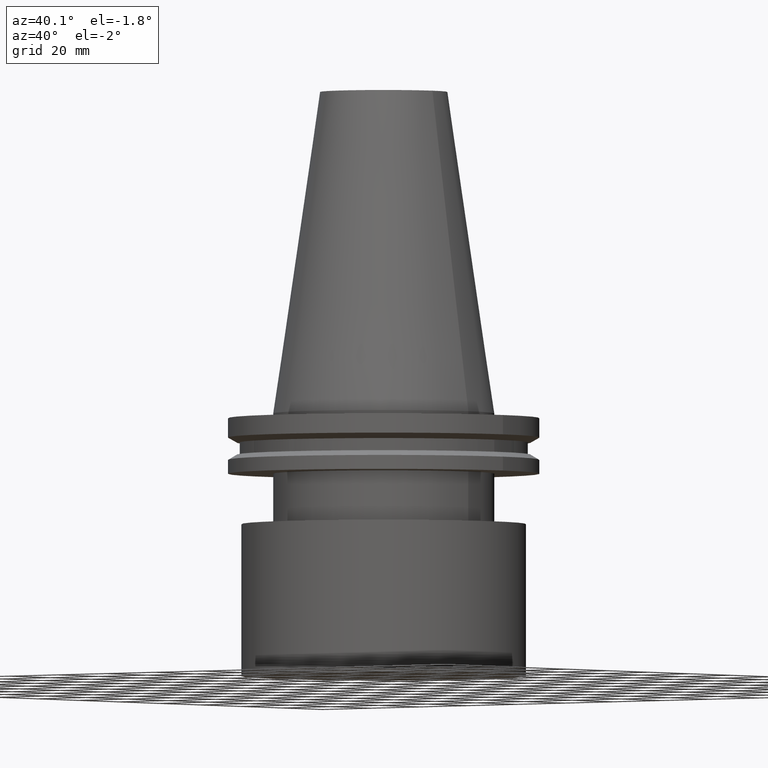
[diagram: clean part render]
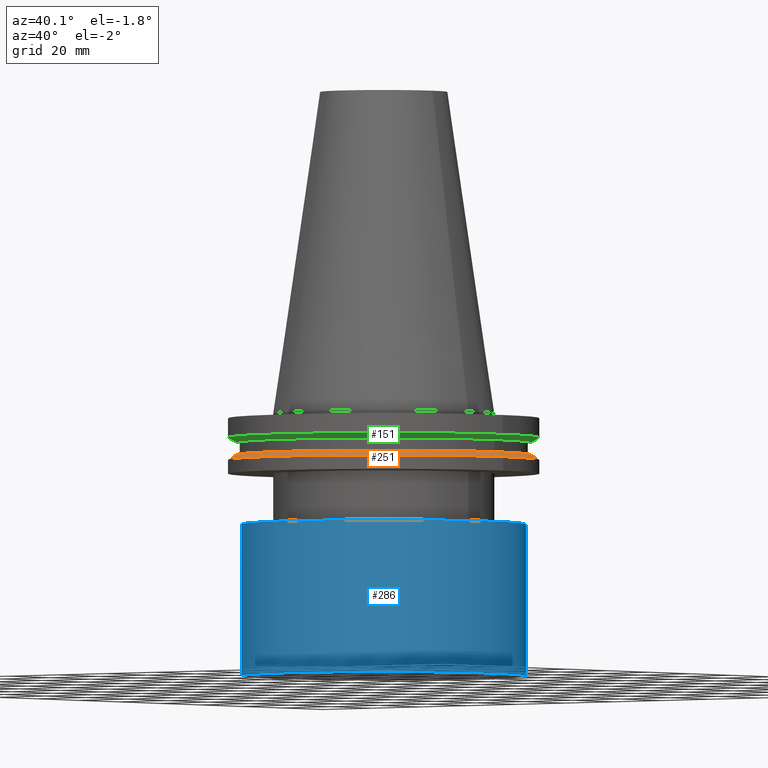
[diagram: same view with three faces highlighted in distinct colors, each labeled with its STEP entity id]
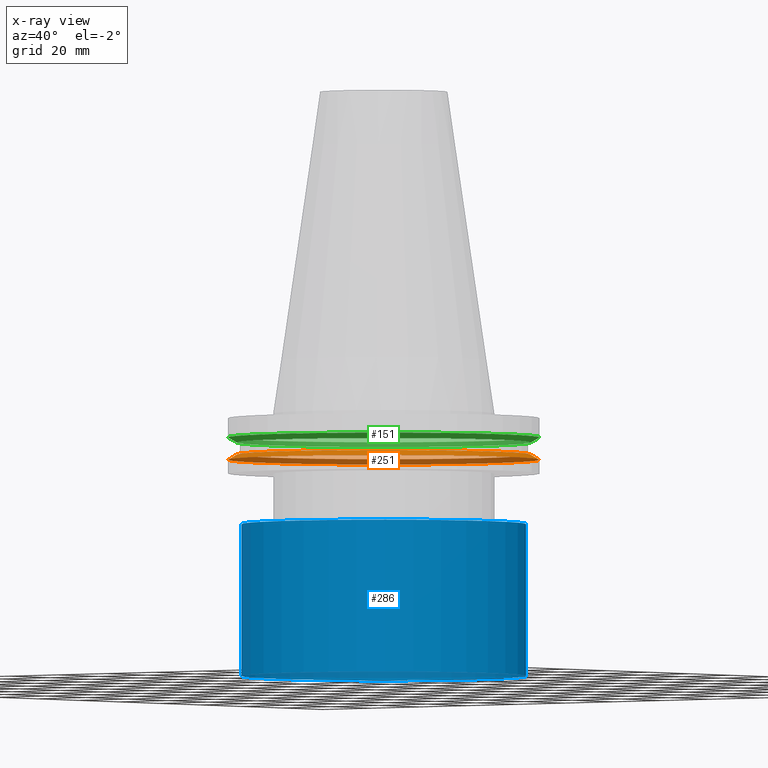
[diagram: x-ray of the same camera — body ghosted, the three highlighted faces saturated]
A machine part, auxiliary view with three faces highlighted in distinct colors.
The next image is the same camera in x-ray (body ghosted, the three faces saturated) — at least one of them is partly hidden behind the body in this view.
Their STEP definitions:

[orange] entity #251 — the highlighted conical surface has half-angle 60 deg.
#2 = VERTEX_POINT ( 'NONE', #373 ) ;
#8 = EDGE_LOOP ( 'NONE', ( #227 ) ) ;
#9 = FACE_BOUND ( 'NONE', #8, .T. ) ;
#32 = AXIS2_PLACEMENT_3D ( 'NONE', #189, #317, #94 ) ;
#39 = EDGE_LOOP ( 'NONE', ( #319 ) ) ;
#94 = DIRECTION ( 'NONE',  ( -1.000000000000000000, 0.000000000000000000, 0.000000000000000000 ) ) ;
#125 = AXIS2_PLACEMENT_3D ( 'NONE', #206, #301, #140 ) ;
#140 = DIRECTION ( 'NONE',  ( 1.000000000000000000, 0.000000000000000000, 0.000000000000000000 ) ) ;
#178 = DIRECTION ( 'NONE',  ( -0.000000000000000000, -0.000000000000000000, 1.000000000000000000 ) ) ;
#179 = VERTEX_POINT ( 'NONE', #305 ) ;
#184 = EDGE_CURVE ( 'NONE', #2, #2, #310, .T. ) ;
#189 = CARTESIAN_POINT ( 'NONE',  ( 0.000000000000000000, 0.000000000000000000, -14.65761014474876944 ) ) ;
#206 = CARTESIAN_POINT ( 'NONE',  ( 0.000000000000000000, 0.000000000000000000, -13.05499999999999794 ) ) ;
#223 = FACE_OUTER_BOUND ( 'NONE', #39, .T. ) ;
#227 = ORIENTED_EDGE ( 'NONE', *, *, #353, .F. ) ;
#230 = CONICAL_SURFACE ( 'NONE', #32, 49.21499999999998920, 1.047197551196554333 ) ;
#251 = ADVANCED_FACE ( 'NONE', ( #9, #223 ), #230, .T. ) ;
#301 = DIRECTION ( 'NONE',  ( -0.000000000000000000, -0.000000000000000000, 1.000000000000000000 ) ) ;
#304 = DIRECTION ( 'NONE',  ( 1.000000000000000000, 0.000000000000000000, 0.000000000000000000 ) ) ;
#305 = CARTESIAN_POINT ( 'NONE',  ( 46.43919780457007818, 0.000000000000000000, -13.05499999999999794 ) ) ;
#310 = CIRCLE ( 'NONE', #340, 49.21499999999998920 ) ;
#317 = DIRECTION ( 'NONE',  ( 0.000000000000000000, 0.000000000000000000, -1.000000000000000000 ) ) ;
#319 = ORIENTED_EDGE ( 'NONE', *, *, #184, .T. ) ;
#330 = CARTESIAN_POINT ( 'NONE',  ( 0.000000000000000000, 0.000000000000000000, -14.65761014474876944 ) ) ;
#340 = AXIS2_PLACEMENT_3D ( 'NONE', #330, #178, #304 ) ;
#353 = EDGE_CURVE ( 'NONE', #179, #179, #372, .T. ) ;
#372 = CIRCLE ( 'NONE', #125, 46.43919780457007818 ) ;
#373 = CARTESIAN_POINT ( 'NONE',  ( 49.21499999999998920, 0.000000000000000000, -14.65761014474876944 ) ) ;

[blue] entity #286 — the highlighted cylindrical surface (bore or boss wall) has radius 44.9961 mm, axis along (-0, 0, -1).
#18 = FACE_OUTER_BOUND ( 'NONE', #265, .T. ) ;
#25 = CARTESIAN_POINT ( 'NONE',  ( 0.000000000000000000, 44.99609999999999843, -35.00000000000000000 ) ) ;
#27 = VERTEX_POINT ( 'NONE', #88 ) ;
#28 = EDGE_LOOP ( 'NONE', ( #87 ) ) ;
#36 = EDGE_CURVE ( 'NONE', #369, #369, #393, .T. ) ;
#80 = FACE_OUTER_BOUND ( 'NONE', #28, .T. ) ;
#87 = ORIENTED_EDGE ( 'NONE', *, *, #36, .T. ) ;
#88 = CARTESIAN_POINT ( 'NONE',  ( 0.000000000000000000, 44.99609999999999843, -83.00719999999999743 ) ) ;
#89 = CIRCLE ( 'NONE', #349, 44.99609999999999843 ) ;
#97 = ORIENTED_EDGE ( 'NONE', *, *, #298, .F. ) ;
#102 = DIRECTION ( 'NONE',  ( 0.000000000000000000, 1.000000000000000000, 0.000000000000000000 ) ) ;
#135 = CYLINDRICAL_SURFACE ( 'NONE', #302, 44.99609999999999843 ) ;
#169 = CARTESIAN_POINT ( 'NONE',  ( 0.000000000000000000, 1.717052784148521541E-15, -83.00719999999999743 ) ) ;
#172 = DIRECTION ( 'NONE',  ( -0.000000000000000000, 3.576656801789151849E-17, -1.000000000000000000 ) ) ;
#241 = AXIS2_PLACEMENT_3D ( 'NONE', #256, #375, #316 ) ;
#256 = CARTESIAN_POINT ( 'NONE',  ( 0.000000000000000000, -1.925929944387235853E-31, -35.00000000000000000 ) ) ;
#265 = EDGE_LOOP ( 'NONE', ( #97 ) ) ;
#286 = ADVANCED_FACE ( 'NONE', ( #80, #18 ), #135, .T. ) ;
#298 = EDGE_CURVE ( 'NONE', #27, #27, #89, .T. ) ;
#302 = AXIS2_PLACEMENT_3D ( 'NONE', #386, #391, #102 ) ;
#316 = DIRECTION ( 'NONE',  ( 0.000000000000000000, 1.000000000000000000, 0.000000000000000000 ) ) ;
#349 = AXIS2_PLACEMENT_3D ( 'NONE', #169, #172, #355 ) ;
#355 = DIRECTION ( 'NONE',  ( 0.000000000000000000, 1.000000000000000000, 0.000000000000000000 ) ) ;
#369 = VERTEX_POINT ( 'NONE', #25 ) ;
#375 = DIRECTION ( 'NONE',  ( -0.000000000000000000, 3.576656801789151849E-17, -1.000000000000000000 ) ) ;
#386 = CARTESIAN_POINT ( 'NONE',  ( 0.000000000000000000, 1.717052784148521541E-15, -83.00719999999999743 ) ) ;
#391 = DIRECTION ( 'NONE',  ( -0.000000000000000000, 3.576656801789151849E-17, -1.000000000000000000 ) ) ;
#393 = CIRCLE ( 'NONE', #241, 44.99609999999999843 ) ;

[green] entity #151 — the highlighted conical surface has half-angle 60 deg.
#19 = CARTESIAN_POINT ( 'NONE',  ( 0.000000000000000000, 0.000000000000000000, -9.204999999999991189 ) ) ;
#24 = CARTESIAN_POINT ( 'NONE',  ( 0.000000000000000000, 0.000000000000000000, -7.602389855251287187 ) ) ;
#26 = AXIS2_PLACEMENT_3D ( 'NONE', #358, #77, #108 ) ;
#59 = EDGE_LOOP ( 'NONE', ( #306 ) ) ;
#77 = DIRECTION ( 'NONE',  ( -0.000000000000000000, -0.000000000000000000, 1.000000000000000000 ) ) ;
#78 = AXIS2_PLACEMENT_3D ( 'NONE', #19, #136, #268 ) ;
#90 = VERTEX_POINT ( 'NONE', #144 ) ;
#108 = DIRECTION ( 'NONE',  ( 1.000000000000000000, 0.000000000000000000, 0.000000000000000000 ) ) ;
#136 = DIRECTION ( 'NONE',  ( -0.000000000000000000, -0.000000000000000000, 1.000000000000000000 ) ) ;
#144 = CARTESIAN_POINT ( 'NONE',  ( 49.21500000000000341, 0.000000000000000000, -7.602389855251287187 ) ) ;
#151 = ADVANCED_FACE ( 'NONE', ( #354, #297 ), #260, .T. ) ;
#158 = CIRCLE ( 'NONE', #392, 49.21500000000000341 ) ;
#163 = ORIENTED_EDGE ( 'NONE', *, *, #203, .F. ) ;
#187 = DIRECTION ( 'NONE',  ( 1.000000000000000000, 0.000000000000000000, 0.000000000000000000 ) ) ;
#191 = DIRECTION ( 'NONE',  ( -0.000000000000000000, -0.000000000000000000, 1.000000000000000000 ) ) ;
#192 = CIRCLE ( 'NONE', #26, 46.43919780457007818 ) ;
#203 = EDGE_CURVE ( 'NONE', #90, #90, #158, .T. ) ;
#214 = VERTEX_POINT ( 'NONE', #339 ) ;
#260 = CONICAL_SURFACE ( 'NONE', #78, 46.43919780457007818, 1.047197551196575205 ) ;
#268 = DIRECTION ( 'NONE',  ( 1.000000000000000000, 0.000000000000000000, 0.000000000000000000 ) ) ;
#297 = FACE_BOUND ( 'NONE', #59, .T. ) ;
#306 = ORIENTED_EDGE ( 'NONE', *, *, #338, .T. ) ;
#318 = EDGE_LOOP ( 'NONE', ( #163 ) ) ;
#338 = EDGE_CURVE ( 'NONE', #214, #214, #192, .T. ) ;
#339 = CARTESIAN_POINT ( 'NONE',  ( 46.43919780457007818, 0.000000000000000000, -9.204999999999991189 ) ) ;
#354 = FACE_OUTER_BOUND ( 'NONE', #318, .T. ) ;
#358 = CARTESIAN_POINT ( 'NONE',  ( 0.000000000000000000, 0.000000000000000000, -9.204999999999991189 ) ) ;
#392 = AXIS2_PLACEMENT_3D ( 'NONE', #24, #191, #187 ) ;